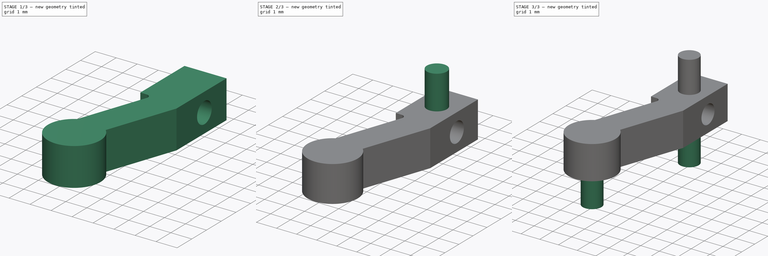
[diagram: build sequence overview — one tinted view per stage of 3, left to right]
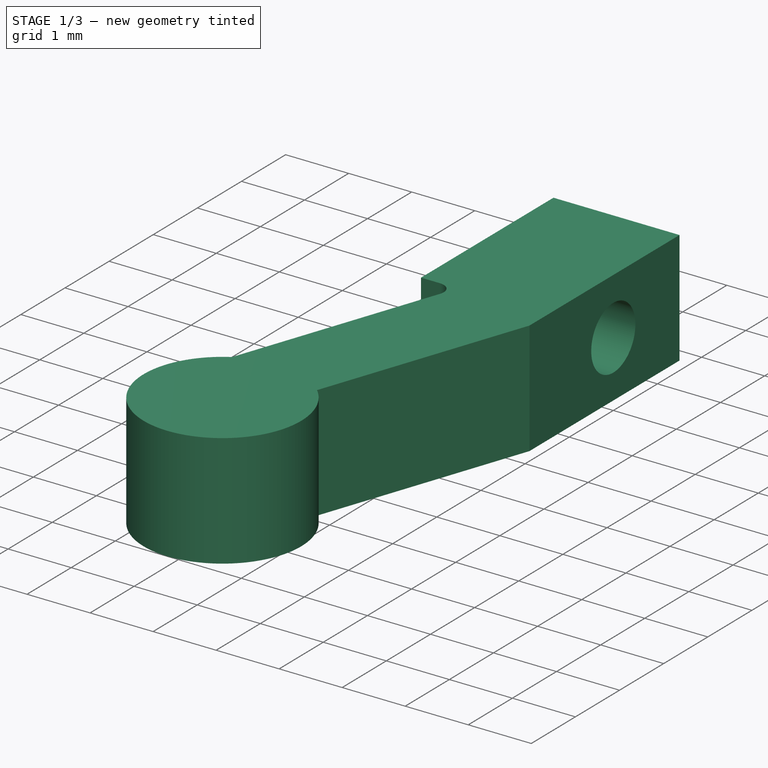
[diagram: stage 1 of 3 — iso view after this stage's code; geometry added in this stage tinted green]
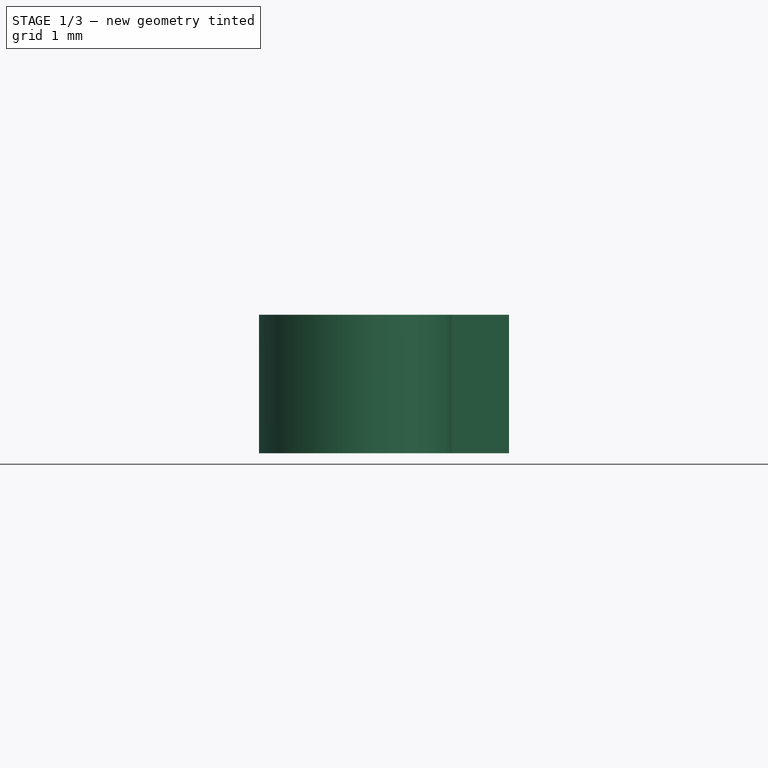
[diagram: stage 1 of 3 — front view after this stage's code; geometry added in this stage tinted green]
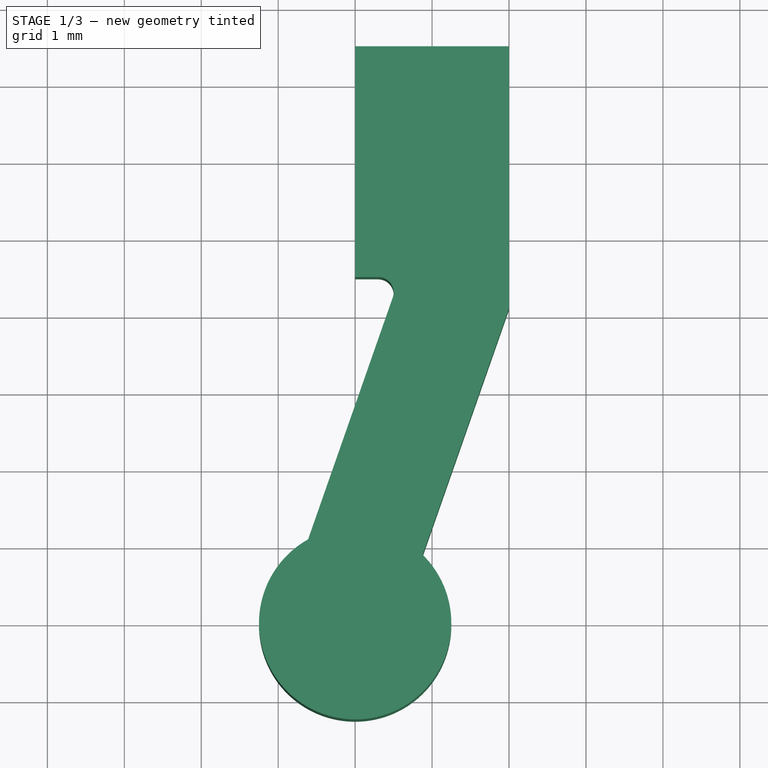
[diagram: stage 1 of 3 — top view after this stage's code; geometry added in this stage tinted green]
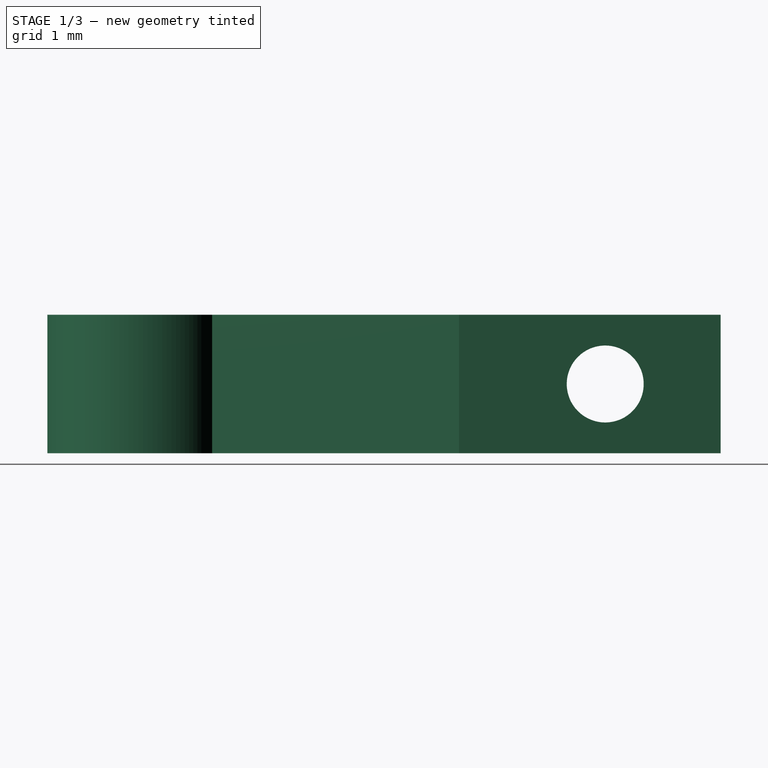
[diagram: stage 1 of 3 — right view after this stage's code; geometry added in this stage tinted green]
FCSTD DOCUMENT  (FreeCAD 0.16R6264 (Git))
Label: Dir_B
License: All rights reserved
LicenseURL: http://en.wikipedia.org/wiki/All_rights_reserved
objects: Sketcher::SketchObject×5, PartDesign::Pad×4, PartDesign::Pocket×1
note: 15 computed .brp shape members not serialized (recipe doc carries the construction recipe); baked Part::Feature solids carry a one-line shape summary decoded from their .brp

FEATURE [Sketcher::SketchObject] Sketch
  sketch-geometry (8):
    g0: LineSegment StartX=-0.123159 StartY=-5.10913 StartZ=0 EndX=1 EndY=-1.9 EndZ=0
    g1: LineSegment StartX=1 StartY=-1.9 StartZ=0 EndX=1 EndY=1.5 EndZ=0
    g2: LineSegment StartX=1 StartY=1.5 StartZ=0 EndX=-1 EndY=1.5 EndZ=0
    g3: LineSegment StartX=-1 StartY=1.5 StartZ=0 EndX=-1 EndY=-1.5 EndZ=0
    g4: LineSegment StartX=-1 StartY=-1.5 StartZ=0 EndX=-0.7 EndY=-1.5 EndZ=0
    g5: LineSegment StartX=-0.511228 StartY=-1.76607 StartZ=0 EndX=-1.61149 EndY=-4.90978 EndZ=0
    g6: ArcOfCircle CenterX=-0.7 CenterY=-1.7 CenterZ=0 NormalX=0 NormalY=0 NormalZ=1 Radius=0.2 StartAngle=5.94652 EndAngle=7.85398
    g7: ArcOfCircle CenterX=-1 CenterY=-6 CenterZ=0 NormalX=0 NormalY=0 NormalZ=1 Radius=1.25 StartAngle=2.08196 EndAngle=7.07652
  constraints (24):
    c: Coincident(g0,g1)
    c: Vertical(g1)
    c: Coincident(g1,g2)
    c: Horizontal(g2)
    c: Coincident(g2,g3)
    c: Vertical(g3)
    c: Coincident(g3,g4)
    c: Horizontal(g4)
    c: Tangent(g4,g6) = 1.5708
    c: Tangent(g5,g6) = 1.5708
    c: Radius(g6) = 0.2
    c: DistanceX(g2) = -2
    c: DistanceX(g1) = 1
    c: DistanceY(g1) = 3.4
    c: DistanceY(g3) = -3
    c: DistanceY(g2) = 1.5
    c: Parallel(g0,g5)
    c: DistanceX(g4) = 0.3
    c: Coincident(g7,g5)
    c: Coincident(g7,g0)
    c: DistanceX(g7) = -1
    c: DistanceY(g7) = -6
    c: Radius(g7) = 1.25
    c: Distance(g0) = 3.4
FEATURE [PartDesign::Pad] Pad
  Length = 1.8
  Length2 = 100
  Midplane = true
  Sketch = -> Sketch
  Type = 0
FEATURE [Sketcher::SketchObject] Sketch001
  Placement = pos=(1,0,0) rot=(0.57735,0.57735,0.57735;2.0944rad)
  Support = -> Pad [Face2]
  sketch-geometry (1):
    g0: Circle CenterX=0 CenterY=0 CenterZ=0 NormalX=0 NormalY=0 NormalZ=1 Radius=0.5
  constraints (2):
    c: Coincident(g0,g-1)
    c: Radius(g0) = 0.5
FEATURE [PartDesign::Pocket] Pocket
  Length = 2
  Sketch = -> Sketch001
  Type = 0
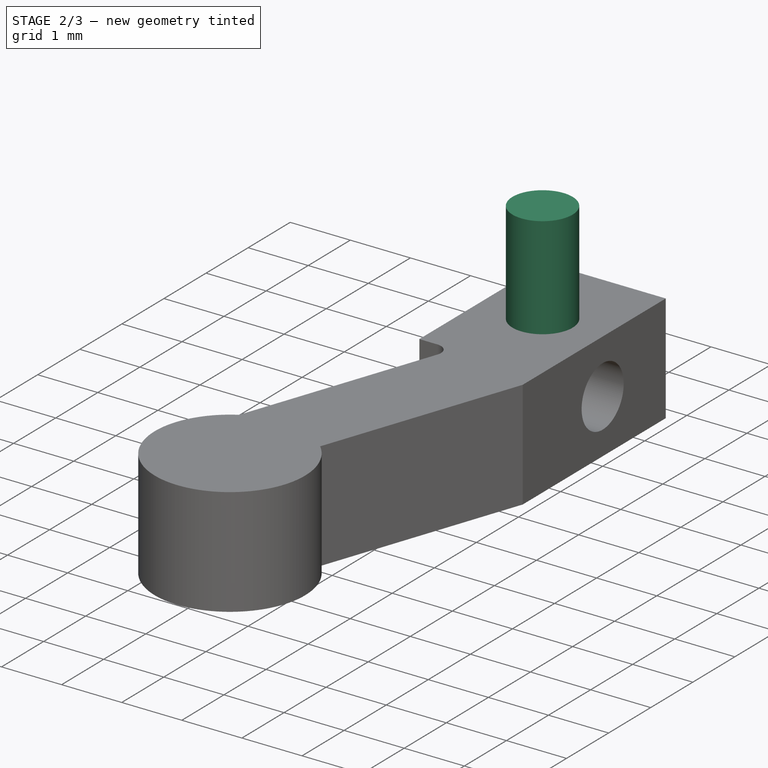
[diagram: stage 2 of 3 — iso view after this stage's code; geometry added in this stage tinted green]
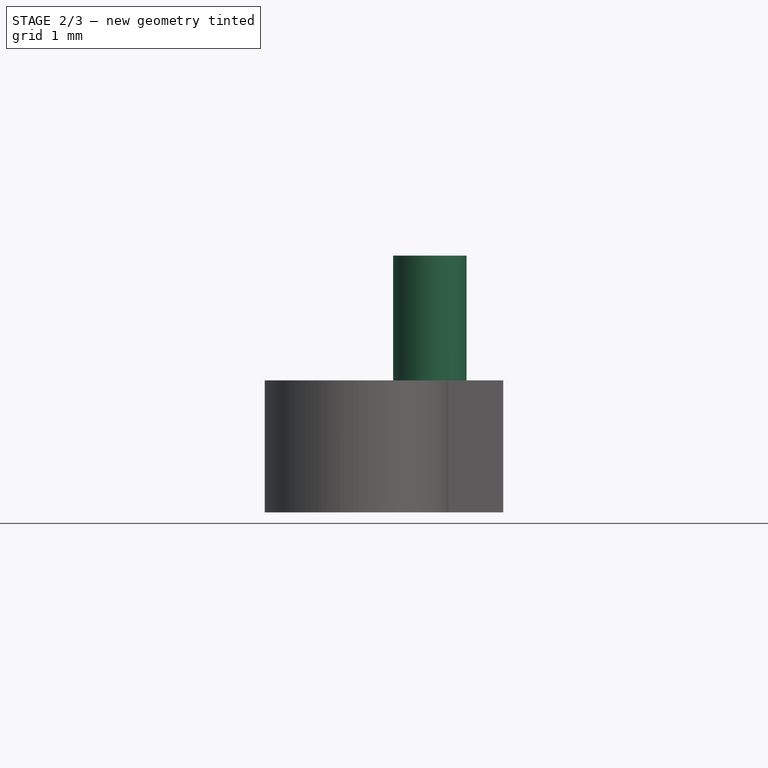
[diagram: stage 2 of 3 — front view after this stage's code; geometry added in this stage tinted green]
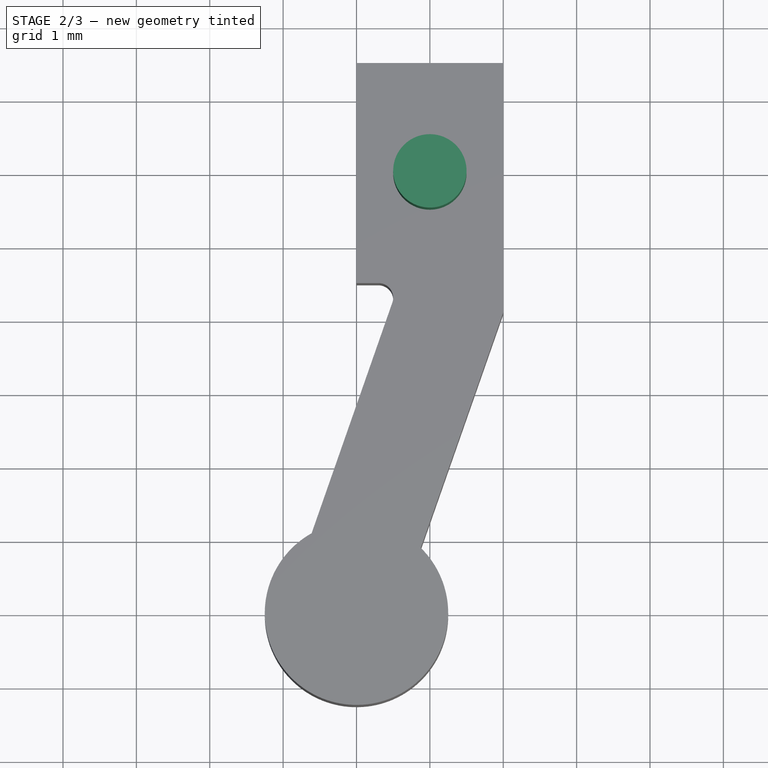
[diagram: stage 2 of 3 — top view after this stage's code; geometry added in this stage tinted green]
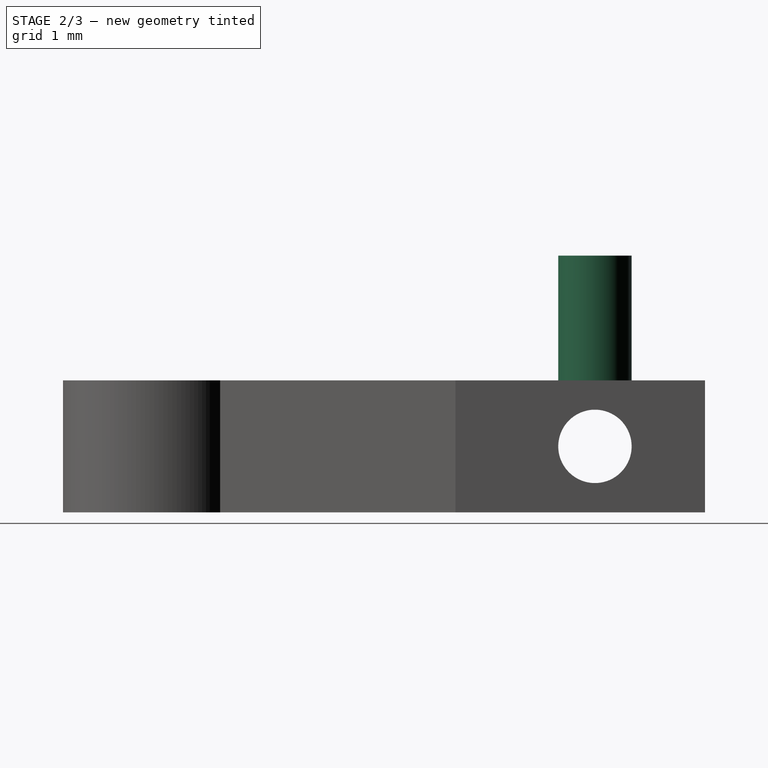
[diagram: stage 2 of 3 — right view after this stage's code; geometry added in this stage tinted green]
FEATURE [Sketcher::SketchObject] Sketch002
  Placement = pos=(0,0,0.9) rot=(0,0,1;0rad)
  Support = -> Pocket [Face5]
  sketch-geometry (1):
    g0: Circle CenterX=0 CenterY=0 CenterZ=0 NormalX=0 NormalY=0 NormalZ=1 Radius=0.5
  constraints (2):
    c: Coincident(g0,g-1)
    c: Radius(g0) = 0.5
FEATURE [PartDesign::Pad] Pad001
  Length = 1.7
  Length2 = 100
  Sketch = -> Sketch002
  Type = 0
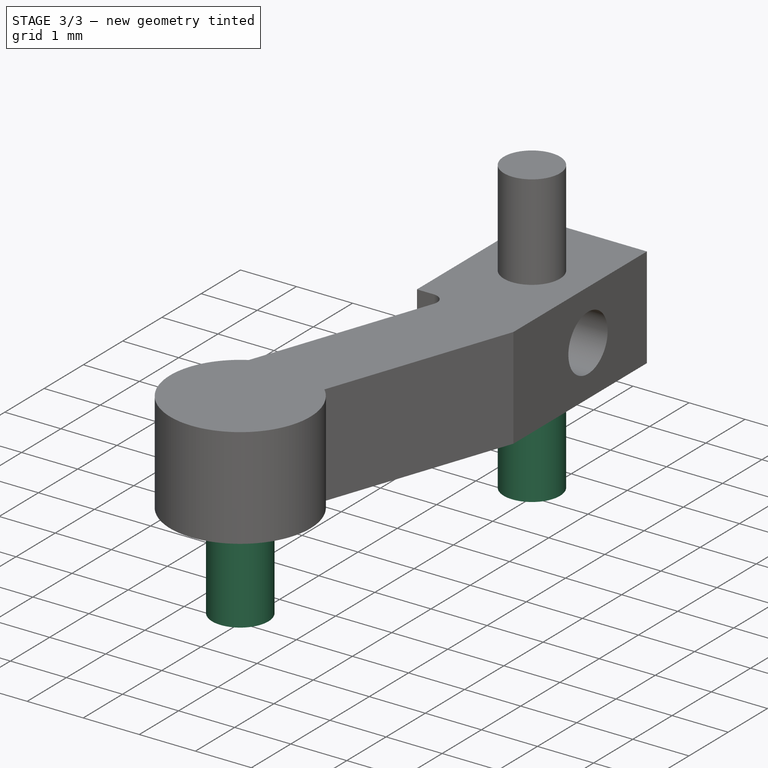
[diagram: stage 3 of 3 — iso view after this stage's code; geometry added in this stage tinted green]
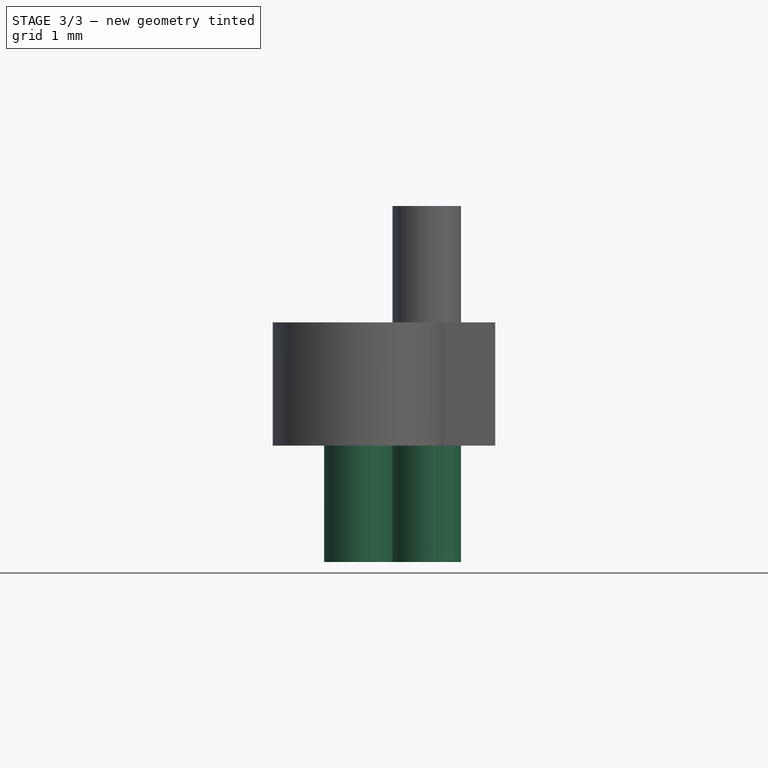
[diagram: stage 3 of 3 — front view after this stage's code; geometry added in this stage tinted green]
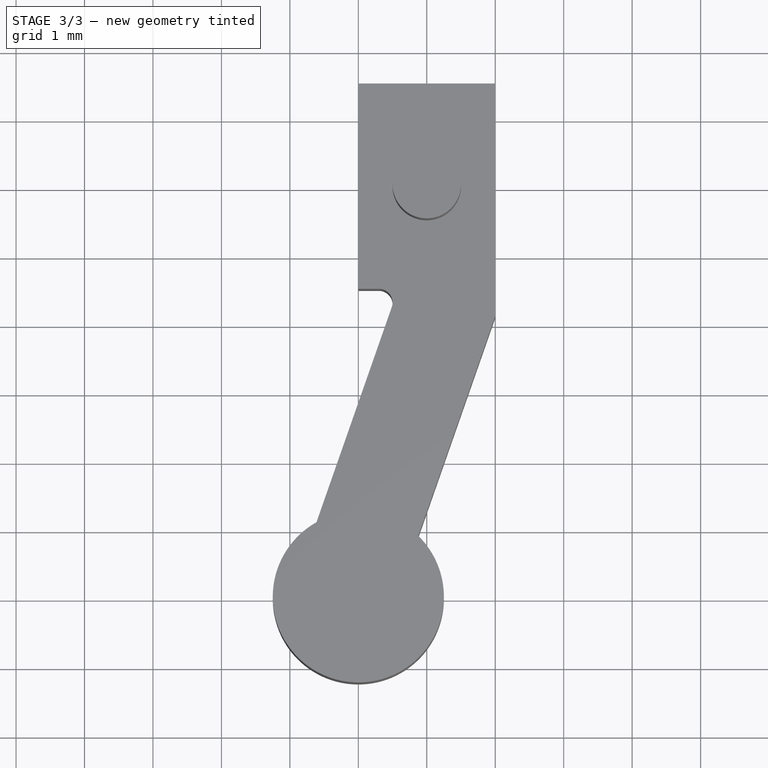
[diagram: stage 3 of 3 — top view after this stage's code; geometry added in this stage tinted green]
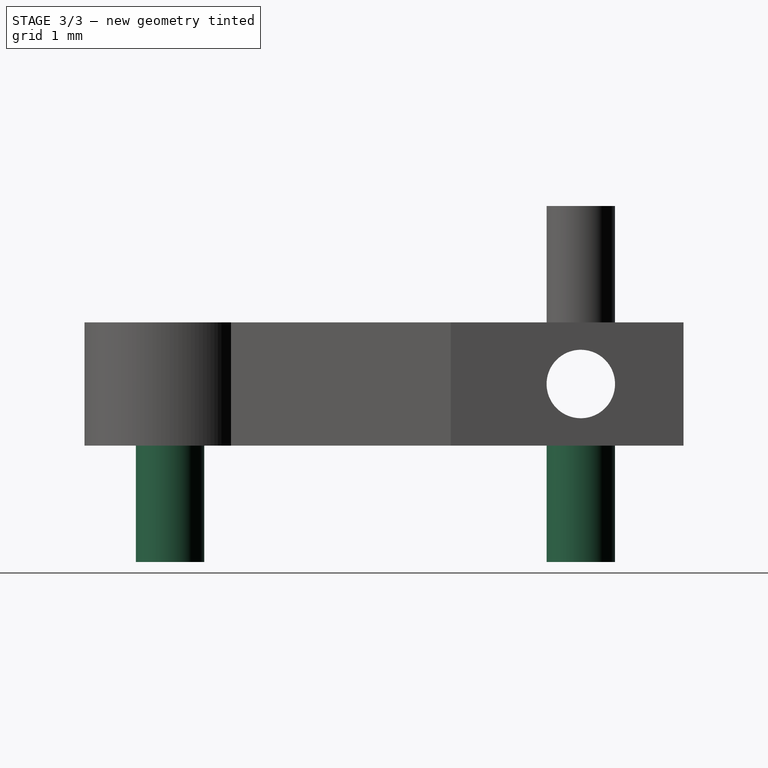
[diagram: stage 3 of 3 — right view after this stage's code; geometry added in this stage tinted green]
FEATURE [Sketcher::SketchObject] Sketch003
  Placement = pos=(0,0,-0.9) rot=(1,0,0;3.14159rad)
  Support = -> Pad001 [Face4]
  sketch-geometry (1):
    g0: Circle CenterX=0 CenterY=0 CenterZ=0 NormalX=0 NormalY=0 NormalZ=1 Radius=0.5
  constraints (2):
    c: Coincident(g0,g-1)
    c: Radius(g0) = 0.5
FEATURE [PartDesign::Pad] Pad002
  Length = 1.7
  Length2 = 100
  Sketch = -> Sketch003
  Type = 0
FEATURE [Sketcher::SketchObject] Sketch004
  Placement = pos=(0,0,-0.9) rot=(1,0,0;3.14159rad)
  Support = -> Pad002 [Face4]
  sketch-geometry (1):
    g0: Circle CenterX=-1 CenterY=6 CenterZ=0 NormalX=0 NormalY=0 NormalZ=1 Radius=0.5
  constraints (3):
    c: DistanceX(g0) = -1
    c: DistanceY(g0) = 6
    c: Radius(g0) = 0.5
FEATURE [PartDesign::Pad] Pad003
  Length = 1.7
  Length2 = 100
  Sketch = -> Sketch004
  Type = 0
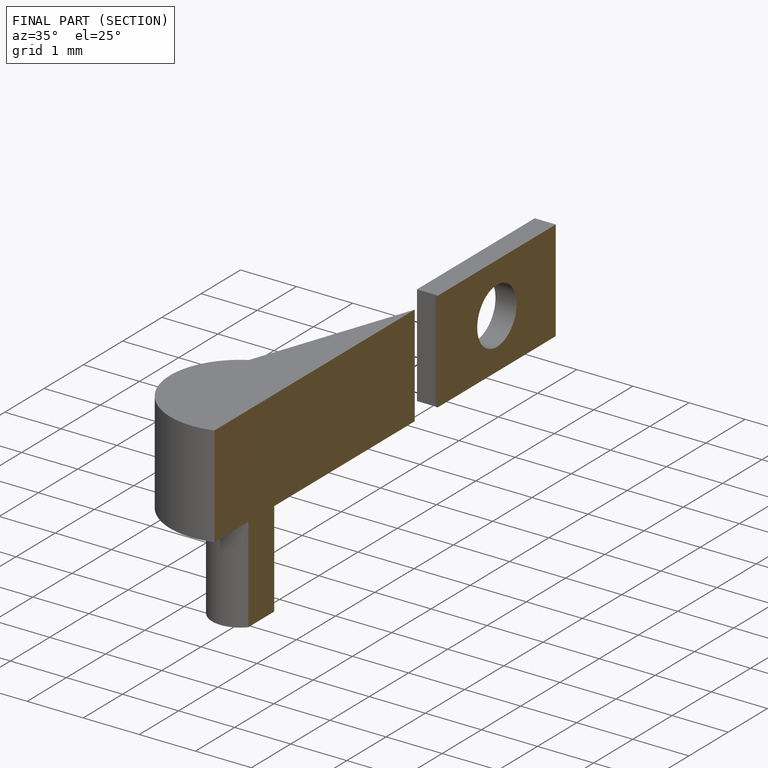
[diagram: finished part — half-section view (interior)]
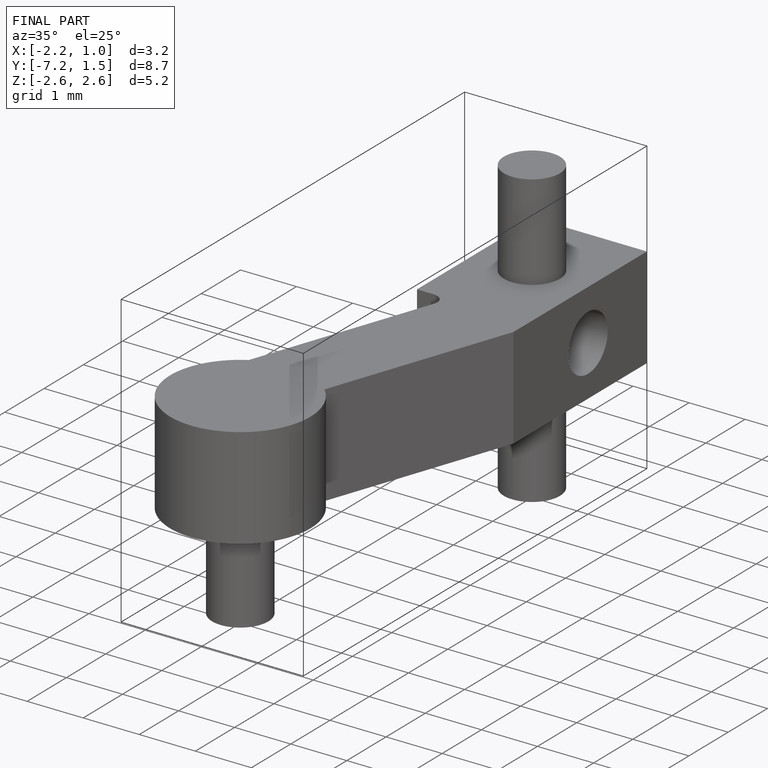
[diagram: finished part — iso view with bounding-box wireframe]
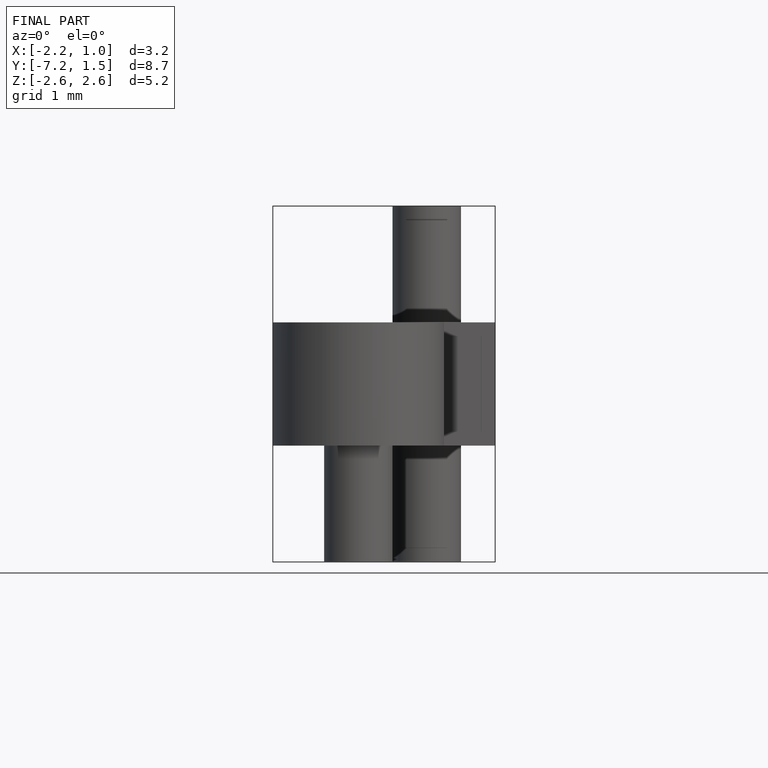
[diagram: finished part — front view with bounding-box wireframe]
